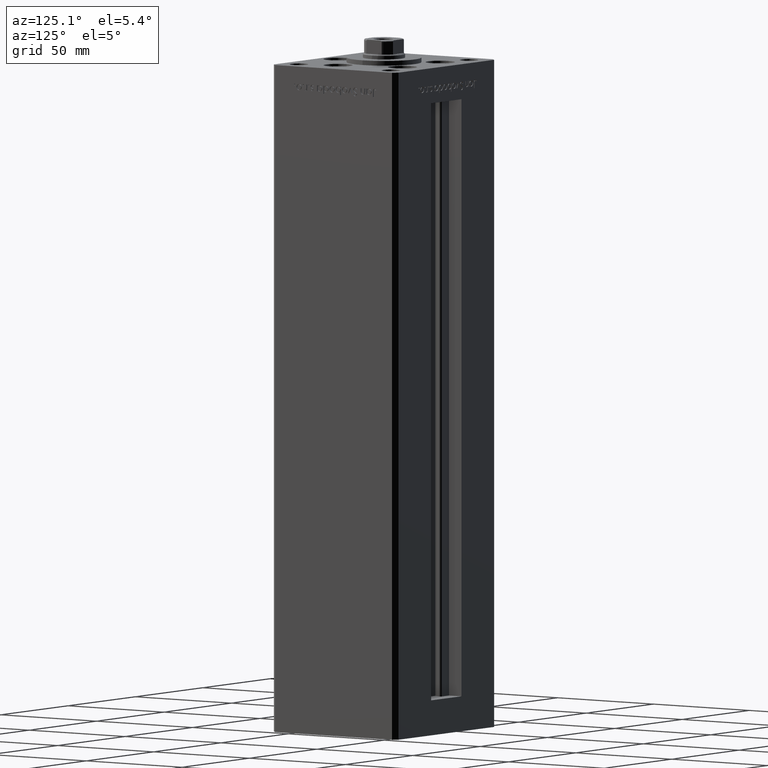
[diagram: clean part render]
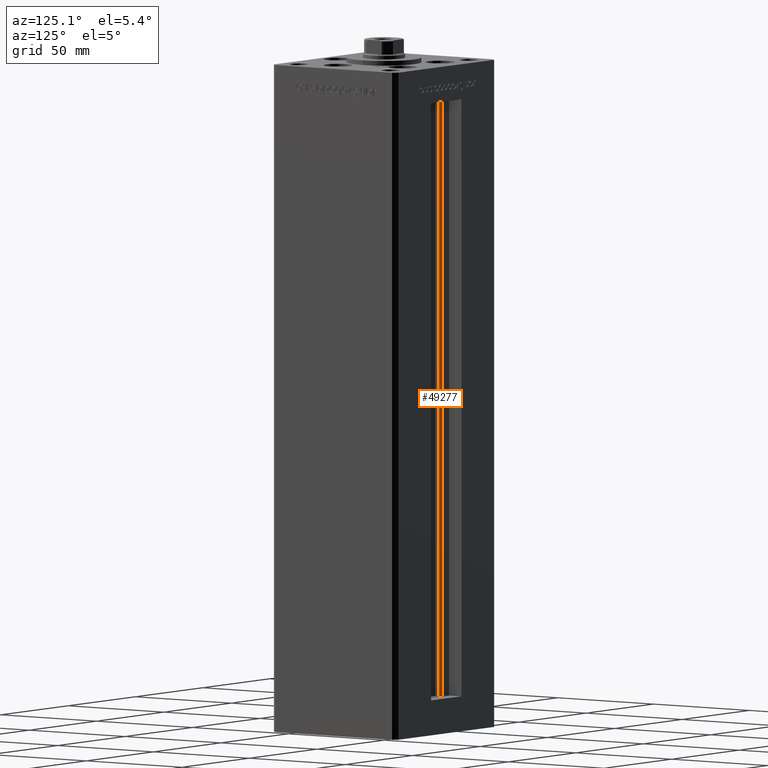
[diagram: same view with one face highlighted and labeled with its STEP entity id]
A machine part, auxiliary view. The second image highlights one B-rep face of the part: STEP entity #49277.
In plain terms, the highlighted cylindrical surface (edge-blend (fillet) strip) has radius 0.9333 mm, axis along (0, 0, 1).
Its self-contained STEP definition (entity closure, byte-faithful):
#677 = VERTEX_POINT ( 'NONE', #17757 ) ;
#4858 = VECTOR ( 'NONE', #50805, 1000.000000000000000 ) ;
#5953 = CIRCLE ( 'NONE', #14427, 0.9333333333340008142 ) ;
#6417 = CARTESIAN_POINT ( 'NONE',  ( -6.183333333334001480, 25.99999999999999289, 256.0000000000000000 ) ) ;
#7604 = VERTEX_POINT ( 'NONE', #6417 ) ;
#8535 = CARTESIAN_POINT ( 'NONE',  ( -6.183333333334001480, 25.06666666666599141, 0.000000000000000000 ) ) ;
#10481 = LINE ( 'NONE', #26533, #4858 ) ;
#12141 = EDGE_CURVE ( 'NONE', #28368, #45059, #50735, .T. ) ;
#12405 = ORIENTED_EDGE ( 'NONE', *, *, #12141, .F. ) ;
#14427 = AXIS2_PLACEMENT_3D ( 'NONE', #22209, #33562, #37263 ) ;
#14605 = CARTESIAN_POINT ( 'NONE',  ( -5.250000000000000000, 25.06666666666599141, 0.000000000000000000 ) ) ;
#15195 = AXIS2_PLACEMENT_3D ( 'NONE', #25602, #41690, #21652 ) ;
#17757 = CARTESIAN_POINT ( 'NONE',  ( -6.183333333334001480, 25.99999999999999289, 0.000000000000000000 ) ) ;
#20460 = EDGE_CURVE ( 'NONE', #677, #28368, #37950, .T. ) ;
#21652 = DIRECTION ( 'NONE',  ( 1.000000000000000000, 0.000000000000000000, 0.000000000000000000 ) ) ;
#22209 = CARTESIAN_POINT ( 'NONE',  ( -6.183333333334001480, 25.06666666666599141, 256.0000000000000000 ) ) ;
#22857 = EDGE_LOOP ( 'NONE', ( #12405, #46127, #38684, #34964 ) ) ;
#24589 = DIRECTION ( 'NONE',  ( 1.000000000000000000, 0.000000000000000000, 0.000000000000000000 ) ) ;
#25602 = CARTESIAN_POINT ( 'NONE',  ( -6.183333333334001480, 25.06666666666599141, 0.000000000000000000 ) ) ;
#26203 = DIRECTION ( 'NONE',  ( -0.000000000000000000, -0.000000000000000000, 1.000000000000000000 ) ) ;
#26533 = CARTESIAN_POINT ( 'NONE',  ( -6.183333333334001480, 25.99999999999999289, 0.000000000000000000 ) ) ;
#28368 = VERTEX_POINT ( 'NONE', #44531 ) ;
#28548 = CYLINDRICAL_SURFACE ( 'NONE', #41403, 0.9333333333340008142 ) ;
#33562 = DIRECTION ( 'NONE',  ( 0.000000000000000000, 0.000000000000000000, -1.000000000000000000 ) ) ;
#34964 = ORIENTED_EDGE ( 'NONE', *, *, #47244, .T. ) ;
#36721 = DIRECTION ( 'NONE',  ( -0.000000000000000000, -0.000000000000000000, 1.000000000000000000 ) ) ;
#37263 = DIRECTION ( 'NONE',  ( 1.000000000000000000, 0.000000000000000000, 0.000000000000000000 ) ) ;
#37950 = CIRCLE ( 'NONE', #15195, 0.9333333333340008142 ) ;
#38684 = ORIENTED_EDGE ( 'NONE', *, *, #39010, .T. ) ;
#39010 = EDGE_CURVE ( 'NONE', #677, #7604, #10481, .T. ) ;
#41403 = AXIS2_PLACEMENT_3D ( 'NONE', #8535, #36721, #24589 ) ;
#41690 = DIRECTION ( 'NONE',  ( -0.000000000000000000, -0.000000000000000000, -1.000000000000000000 ) ) ;
#44205 = CARTESIAN_POINT ( 'NONE',  ( -5.250000000000000000, 25.06666666666599141, 256.0000000000000000 ) ) ;
#44531 = CARTESIAN_POINT ( 'NONE',  ( -5.250000000000000000, 25.06666666666599141, 0.000000000000000000 ) ) ;
#45059 = VERTEX_POINT ( 'NONE', #44205 ) ;
#46127 = ORIENTED_EDGE ( 'NONE', *, *, #20460, .F. ) ;
#47244 = EDGE_CURVE ( 'NONE', #7604, #45059, #5953, .T. ) ;
#48593 = FACE_OUTER_BOUND ( 'NONE', #22857, .T. ) ;
#49277 = ADVANCED_FACE ( 'NONE', ( #48593 ), #28548, .T. ) ;
#49484 = VECTOR ( 'NONE', #26203, 1000.000000000000000 ) ;
#50735 = LINE ( 'NONE', #14605, #49484 ) ;
#50805 = DIRECTION ( 'NONE',  ( -0.000000000000000000, -0.000000000000000000, 1.000000000000000000 ) ) ;